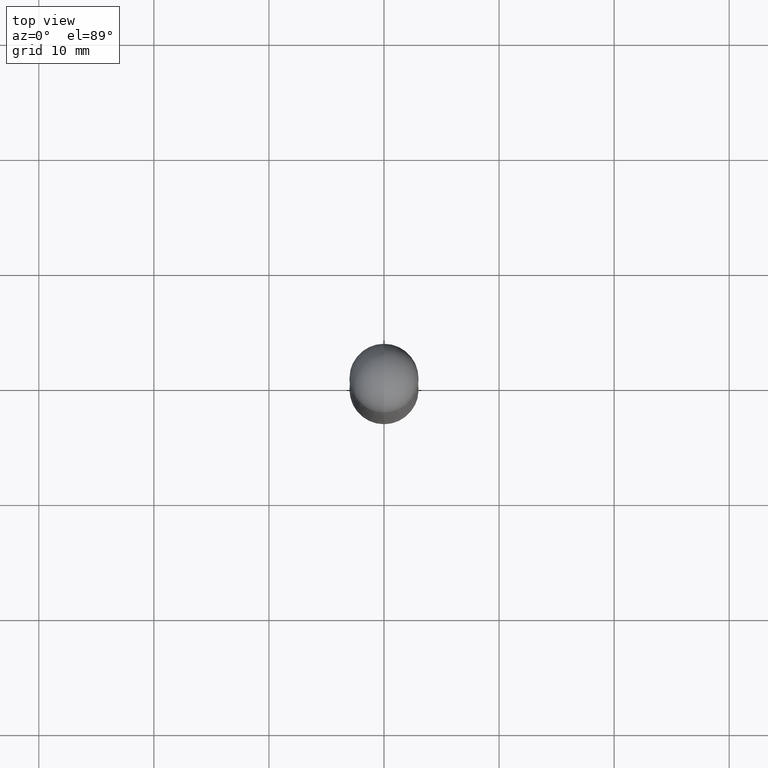
[diagram: clean part render]
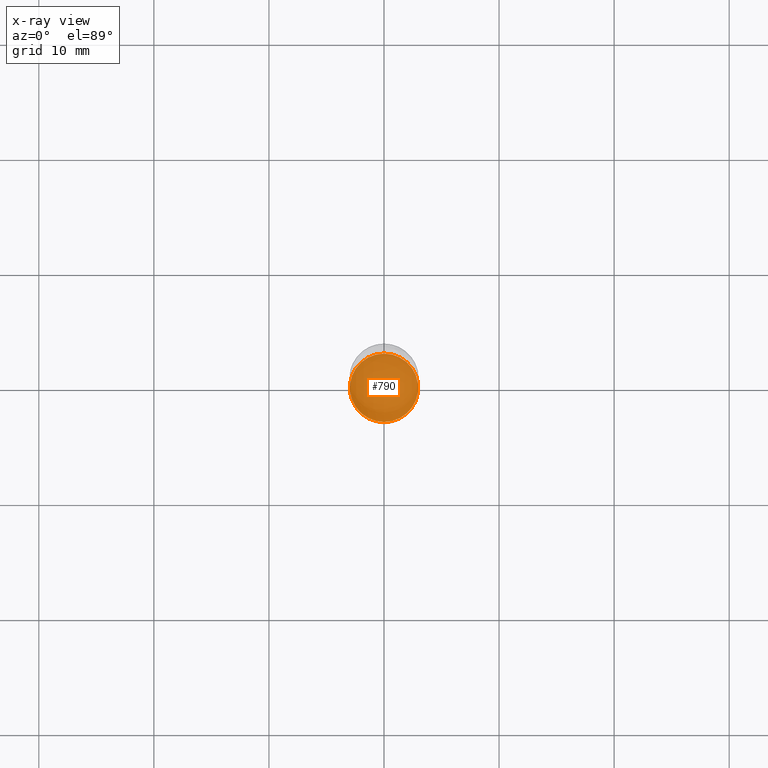
[diagram: x-ray — body ghosted, one internal face saturated and labeled with its STEP entity id]
A machine part, top view, then the same camera in x-ray: the body is ghosted and one INTERNAL B-rep face — a face not visible from any outside direction — is saturated and labeled: STEP entity #790.
In plain terms, the highlighted planar face has unit normal (-0, 0, 1).
Its self-contained STEP definition (entity closure, byte-faithful):
#4 = DIRECTION ( 'NONE',  ( -6.982962677686265922E-15, -1.000000000000000000, 3.492150082336742220E-15 ) ) ;
#61 = EDGE_CURVE ( 'NONE', #406, #68, #111, .T. ) ;
#68 = VERTEX_POINT ( 'NONE', #782 ) ;
#80 = DIRECTION ( 'NONE',  ( -6.982962677686265922E-15, -1.000000000000000000, 2.332918867347791121E-15 ) ) ;
#111 = CIRCLE ( 'NONE', #809, 0.1170999999999999958 ) ;
#143 = DIRECTION ( 'NONE',  ( -6.982962677686265922E-15, -1.000000000000000000, 2.332918867347791121E-15 ) ) ;
#144 = ORIENTED_EDGE ( 'NONE', *, *, #61, .F. ) ;
#150 = ORIENTED_EDGE ( 'NONE', *, *, #612, .F. ) ;
#207 = PLANE ( 'NONE',  #688 ) ;
#212 = CARTESIAN_POINT ( 'NONE',  ( 4.909319164617213777E-29, -7.011888150323944125E-15, -2.007900000000000240 ) ) ;
#253 = CARTESIAN_POINT ( 'NONE',  ( 4.909319164617213216E-29, -7.011888150323943336E-15, -2.007899999999999796 ) ) ;
#335 = CARTESIAN_POINT ( 'NONE',  ( -8.177049295570126487E-16, -0.1171000000000070179, -2.007899999999999796 ) ) ;
#375 = CIRCLE ( 'NONE', #521, 0.1170999999999999958 ) ;
#406 = VERTEX_POINT ( 'NONE', #335 ) ;
#461 = DIRECTION ( 'NONE',  ( -2.445001825099463957E-29, 3.492150082336741825E-15, 1.000000000000000000 ) ) ;
#508 = DIRECTION ( 'NONE',  ( -2.445001825099463116E-29, 3.492150082336742220E-15, 1.000000000000000000 ) ) ;
#521 = AXIS2_PLACEMENT_3D ( 'NONE', #814, #461, #143 ) ;
#567 = EDGE_LOOP ( 'NONE', ( #144, #150 ) ) ;
#612 = EDGE_CURVE ( 'NONE', #68, #406, #375, .T. ) ;
#688 = AXIS2_PLACEMENT_3D ( 'NONE', #212, #508, #4 ) ;
#762 = FACE_OUTER_BOUND ( 'NONE', #567, .T. ) ;
#782 = CARTESIAN_POINT ( 'NONE',  ( 8.355982572539274898E-16, 0.1170999999999929736, -2.007900000000000240 ) ) ;
#790 = ADVANCED_FACE ( 'NONE', ( #762 ), #207, .F. ) ;
#791 = DIRECTION ( 'NONE',  ( -2.445001825099463957E-29, 3.492150082336741825E-15, 1.000000000000000000 ) ) ;
#809 = AXIS2_PLACEMENT_3D ( 'NONE', #253, #791, #80 ) ;
#814 = CARTESIAN_POINT ( 'NONE',  ( 4.909319164617213216E-29, -7.011888150323943336E-15, -2.007899999999999796 ) ) ;